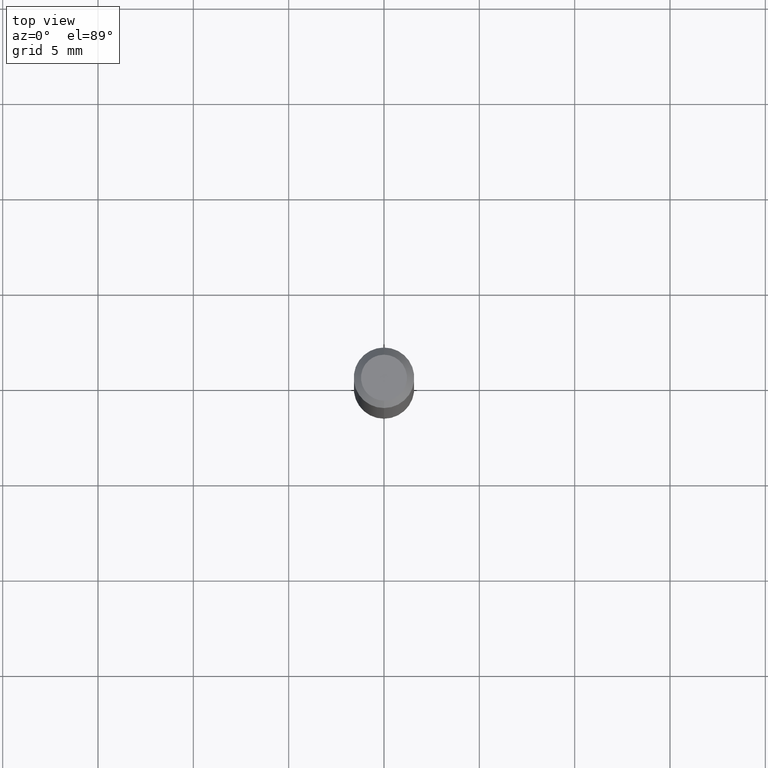
[diagram: clean part render]
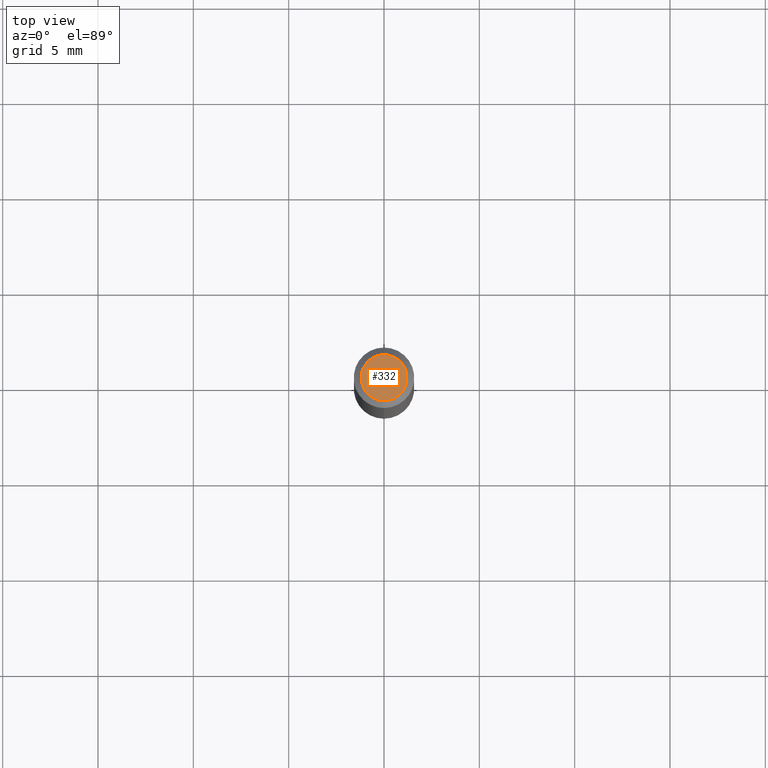
[diagram: same view with one face highlighted and labeled with its STEP entity id]
A machine part, top view. The second image highlights one B-rep face of the part: STEP entity #332.
In plain terms, the highlighted planar face has unit normal (0, -0, -1).
Its self-contained STEP definition (entity closure, byte-faithful):
#2 = CARTESIAN_POINT ( 'NONE',  ( -3.773273898774340269E-16, -0.04749999999999999362, 1.569840803881563153E-16 ) ) ;
#18 = DIRECTION ( 'NONE',  ( -6.982962677686266711E-15, -1.000000000000000000, 3.491471195526703982E-15 ) ) ;
#43 = DIRECTION ( 'NONE',  ( 2.445475889225150509E-29, -3.491471195526703587E-15, -1.000000000000000000 ) ) ;
#67 = EDGE_CURVE ( 'NONE', #288, #336, #364, .T. ) ;
#88 = CARTESIAN_POINT ( 'NONE',  ( 3.840629472727447874E-16, 0.04749999999999999362, -1.747056831868805136E-16 ) ) ;
#120 = AXIS2_PLACEMENT_3D ( 'NONE', #125, #43, #292 ) ;
#125 = CARTESIAN_POINT ( 'NONE',  ( 3.316907271900976096E-16, 0.04749999999999999362, -1.702752824871994641E-16 ) ) ;
#223 = CARTESIAN_POINT ( 'NONE',  ( 2.166887618135246261E-46, -3.093723285515544542E-32, -8.860801399362089902E-18 ) ) ;
#251 = CIRCLE ( 'NONE', #294, 0.04749999999999999362 ) ;
#256 = DIRECTION ( 'NONE',  ( -6.982962677686266711E-15, -1.000000000000000000, 3.491471195526703982E-15 ) ) ;
#288 = VERTEX_POINT ( 'NONE', #2 ) ;
#292 = DIRECTION ( 'NONE',  ( 6.982962677686265922E-15, 1.000000000000000000, -3.491471195526703587E-15 ) ) ;
#294 = AXIS2_PLACEMENT_3D ( 'NONE', #439, #296, #256 ) ;
#296 = DIRECTION ( 'NONE',  ( -2.445475889225150789E-29, 3.491471195526703587E-15, 1.000000000000000000 ) ) ;
#324 = FACE_OUTER_BOUND ( 'NONE', #452, .T. ) ;
#331 = PLANE ( 'NONE',  #120 ) ;
#332 = ADVANCED_FACE ( 'NONE', ( #324 ), #331, .F. ) ;
#336 = VERTEX_POINT ( 'NONE', #88 ) ;
#364 = CIRCLE ( 'NONE', #405, 0.04749999999999999362 ) ;
#369 = EDGE_CURVE ( 'NONE', #336, #288, #251, .T. ) ;
#378 = DIRECTION ( 'NONE',  ( -2.445475889225150789E-29, 3.491471195526703587E-15, 1.000000000000000000 ) ) ;
#405 = AXIS2_PLACEMENT_3D ( 'NONE', #223, #378, #18 ) ;
#439 = CARTESIAN_POINT ( 'NONE',  ( 2.166887618135246261E-46, -3.093723285515544542E-32, -8.860801399362089902E-18 ) ) ;
#452 = EDGE_LOOP ( 'NONE', ( #462, #496 ) ) ;
#462 = ORIENTED_EDGE ( 'NONE', *, *, #369, .T. ) ;
#496 = ORIENTED_EDGE ( 'NONE', *, *, #67, .T. ) ;